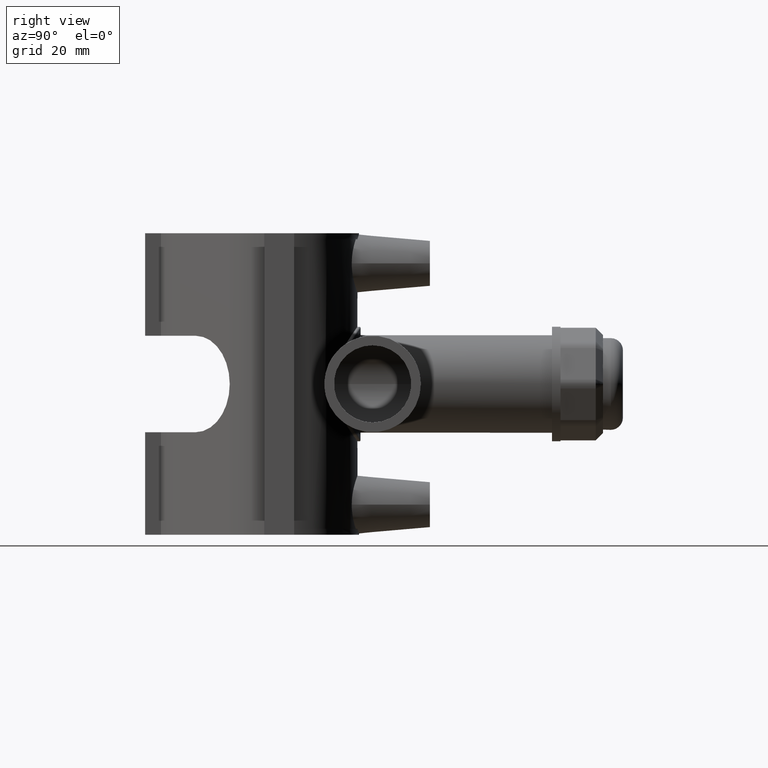
[diagram: clean part render]
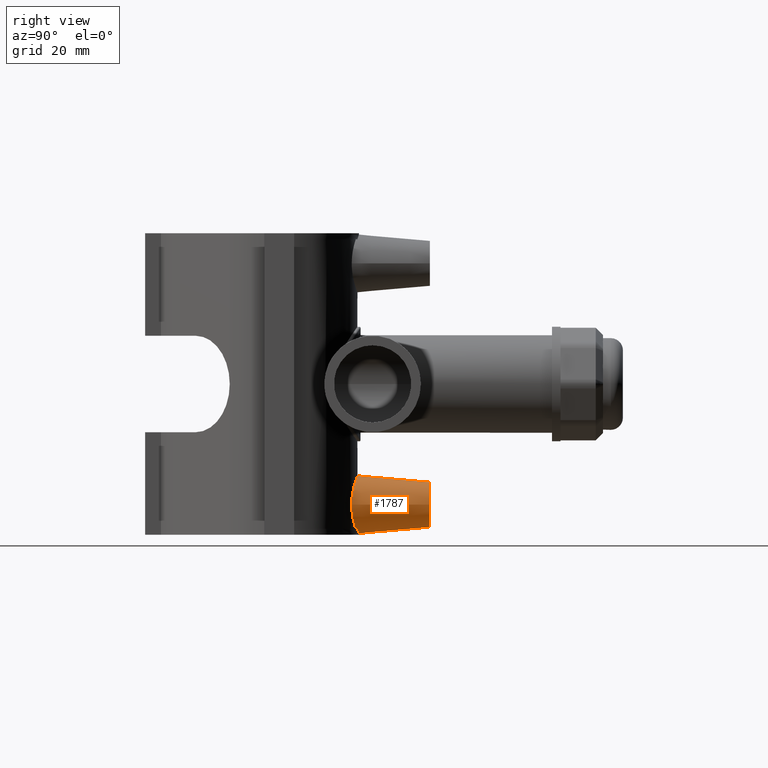
[diagram: same view with one face highlighted and labeled with its STEP entity id]
A machine part, right view. The second image highlights one B-rep face of the part: STEP entity #1787.
In plain terms, the highlighted conical surface has half-angle 5 deg.
Its self-contained STEP definition (entity closure, byte-faithful):
#29=(
BOUNDED_CURVE()
B_SPLINE_CURVE(2,(#2829,#2830,#2831),.UNSPECIFIED.,.F.,.F.)
B_SPLINE_CURVE_WITH_KNOTS((3,3),(0.133736892367415,0.189943766145764),
 .UNSPECIFIED.)
CURVE()
GEOMETRIC_REPRESENTATION_ITEM()
RATIONAL_B_SPLINE_CURVE((1.00009556013023,1.00009167201305,1.00006763645424))
REPRESENTATION_ITEM('')
);
#30=(
BOUNDED_CURVE()
B_SPLINE_CURVE(2,(#2844,#2845,#2846),.UNSPECIFIED.,.F.,.F.)
B_SPLINE_CURVE_WITH_KNOTS((3,3),(0.0558360570482742,0.112042930826623),
 .UNSPECIFIED.)
CURVE()
GEOMETRIC_REPRESENTATION_ITEM()
RATIONAL_B_SPLINE_CURVE((1.00006763645424,1.00009167201305,1.00009556013023))
REPRESENTATION_ITEM('')
);
#32=CONICAL_SURFACE('',#1919,7.5,5.);
#52=FACE_BOUND('',#346,.T.);
#69=B_SPLINE_CURVE_WITH_KNOTS('',3,(#2833,#2834,#2835,#2836,#2837,#2838,
#2839,#2840,#2841,#2842),.UNSPECIFIED.,.F.,.F.,(4,2,2,2,4),(3.86154772595049,
4.03463958852525,4.40043196614832,4.76622434377139,4.93931620634615),
 .UNSPECIFIED.);
#70=B_SPLINE_CURVE_WITH_KNOTS('',3,(#2848,#2849,#2850,#2851,#2852,#2853,
#2854,#2855,#2856,#2857,#2858,#2859,#2860,#2861,#2862,#2863,#2864,#2865,
#2866,#2867,#2868,#2869,#2870,#2871),.UNSPECIFIED.,.F.,.F.,(4,2,2,2,2,2,
2,2,2,2,2,4),(0.,0.369701649813085,0.739403299626169,1.10719176635003,1.47498023307389,
1.84276869979774,2.2105571665216,2.58025881633469,2.94996046614777,3.31966211596086,
3.68936376577394,3.87630209367673),.UNSPECIFIED.);
#71=B_SPLINE_CURVE_WITH_KNOTS('',3,(#2872,#2873,#2874,#2875,#2876,#2877,
#2878,#2879),.UNSPECIFIED.,.F.,.F.,(4,2,2,4),(4.97357930476659,5.16051763266937,
5.53021928248246,5.89992093229554),.UNSPECIFIED.);
#93=CIRCLE('',#1891,7.5);
#224=FACE_OUTER_BOUND('',#345,.T.);
#345=EDGE_LOOP('',(#1258,#1259,#1260,#1261,#1262));
#346=EDGE_LOOP('',(#1263));
#754=VERTEX_POINT('',#2721);
#775=VERTEX_POINT('',#2827);
#776=VERTEX_POINT('',#2828);
#777=VERTEX_POINT('',#2832);
#778=VERTEX_POINT('',#2843);
#779=VERTEX_POINT('',#2847);
#936=EDGE_CURVE('',#754,#754,#93,.T.);
#962=EDGE_CURVE('',#775,#776,#29,.T.);
#963=EDGE_CURVE('',#776,#777,#69,.T.);
#964=EDGE_CURVE('',#777,#778,#30,.T.);
#965=EDGE_CURVE('',#779,#778,#70,.T.);
#966=EDGE_CURVE('',#775,#779,#71,.T.);
#1258=ORIENTED_EDGE('',*,*,#962,.T.);
#1259=ORIENTED_EDGE('',*,*,#963,.T.);
#1260=ORIENTED_EDGE('',*,*,#964,.T.);
#1261=ORIENTED_EDGE('',*,*,#965,.F.);
#1262=ORIENTED_EDGE('',*,*,#966,.F.);
#1263=ORIENTED_EDGE('',*,*,#936,.T.);
#1787=ADVANCED_FACE('',(#224,#52),#32,.T.);
#1891=AXIS2_PLACEMENT_3D('',#2722,#2122,#2123);
#1919=AXIS2_PLACEMENT_3D('',#2826,#2185,#2186);
#2122=DIRECTION('center_axis',(0.,-1.,0.));
#2123=DIRECTION('ref_axis',(1.,0.,0.));
#2185=DIRECTION('center_axis',(0.,-1.,0.));
#2186=DIRECTION('ref_axis',(1.,0.,0.));
#2721=CARTESIAN_POINT('',(-7.5,50.,-40.));
#2722=CARTESIAN_POINT('Origin',(0.,50.,-40.));
#2826=CARTESIAN_POINT('Origin',(0.,50.,-40.));
#2827=CARTESIAN_POINT('',(5.3951674336109,25.4340749460896,-48.));
#2828=CARTESIAN_POINT('',(5.30876387516254,25.9832143145872,-48.));
#2829=CARTESIAN_POINT('Ctrl Pts',(5.3951674336109,25.4340749460896,-48.));
#2830=CARTESIAN_POINT('Ctrl Pts',(5.35185783535779,25.7108609933817,-48.));
#2831=CARTESIAN_POINT('Ctrl Pts',(5.30876387516254,25.9832143145872,-48.));
#2832=CARTESIAN_POINT('',(-5.30876387516254,25.9832143145872,-48.));
#2833=CARTESIAN_POINT('Ctrl Pts',(5.30876387516254,25.9832143145872,-48.));
#2834=CARTESIAN_POINT('Ctrl Pts',(4.80614466395268,26.0859070253168,-48.3227531575944));
#2835=CARTESIAN_POINT('Ctrl Pts',(4.26604609183942,26.1807941840248,-48.6035301130302));
#2836=CARTESIAN_POINT('Ctrl Pts',(2.51473217360753,26.427785365591,-49.3144846289839));
#2837=CARTESIAN_POINT('Ctrl Pts',(1.21930792541024,26.52,-49.5542338195887));
#2838=CARTESIAN_POINT('Ctrl Pts',(-1.21930792541024,26.52,-49.5542338195887));
#2839=CARTESIAN_POINT('Ctrl Pts',(-2.51473217360753,26.427785365591,-49.3144846289839));
#2840=CARTESIAN_POINT('Ctrl Pts',(-4.26604609183942,26.1807941840248,-48.6035301130302));
#2841=CARTESIAN_POINT('Ctrl Pts',(-4.80614466395267,26.0859070253168,-48.3227531575944));
#2842=CARTESIAN_POINT('Ctrl Pts',(-5.30876387516254,25.9832143145872,-48.));
#2843=CARTESIAN_POINT('',(-5.3951674336109,25.4340749460896,-48.));
#2844=CARTESIAN_POINT('Ctrl Pts',(-5.30876387516254,25.9832143145872,-48.));
#2845=CARTESIAN_POINT('Ctrl Pts',(-5.35185783535865,25.7108609933762,-48.));
#2846=CARTESIAN_POINT('Ctrl Pts',(-5.3951674336109,25.4340749460896,-48.));
#2847=CARTESIAN_POINT('',(9.76630249195255,24.096043983104,-40.));
#2848=CARTESIAN_POINT('Ctrl Pts',(9.76630249195255,24.096043983104,-40.));
#2849=CARTESIAN_POINT('Ctrl Pts',(9.76630249195255,24.096043983104,-38.7676611672897));
#2850=CARTESIAN_POINT('Ctrl Pts',(9.5099621601497,24.2044189053943,-37.4659549905574));
#2851=CARTESIAN_POINT('Ctrl Pts',(8.49387395753574,24.5794092044208,-35.0932926872271));
#2852=CARTESIAN_POINT('Ctrl Pts',(7.73484343137408,24.8390807172828,-34.0209372487483));
#2853=CARTESIAN_POINT('Ctrl Pts',(6.00569492756995,25.3126652865951,-32.3389729484772));
#2854=CARTESIAN_POINT('Ctrl Pts',(4.91758131382388,25.5592379122145,-31.6109466468528));
#2855=CARTESIAN_POINT('Ctrl Pts',(2.528128502029,25.9049380292898,-30.6412987795354));
#2856=CARTESIAN_POINT('Ctrl Pts',(1.22596155574619,26.,-30.4002720753778));
#2857=CARTESIAN_POINT('Ctrl Pts',(-1.22596155574619,26.,-30.4002720753778));
#2858=CARTESIAN_POINT('Ctrl Pts',(-2.528128502029,25.9049380292898,-30.6412987795354));
#2859=CARTESIAN_POINT('Ctrl Pts',(-4.91758131382388,25.5592379122145,-31.6109466468528));
#2860=CARTESIAN_POINT('Ctrl Pts',(-6.00569492756996,25.3126652865951,-32.3389729484772));
#2861=CARTESIAN_POINT('Ctrl Pts',(-7.73484343137409,24.8390807172828,-34.0209372487483));
#2862=CARTESIAN_POINT('Ctrl Pts',(-8.49387395753574,24.5794092044208,-35.0932926872271));
#2863=CARTESIAN_POINT('Ctrl Pts',(-9.50996216014971,24.2044189053943,-37.4659549905574));
#2864=CARTESIAN_POINT('Ctrl Pts',(-9.76630249195255,24.096043983104,-38.7676611672897));
#2865=CARTESIAN_POINT('Ctrl Pts',(-9.76630249195255,24.096043983104,-41.2323388327103));
#2866=CARTESIAN_POINT('Ctrl Pts',(-9.50996216014972,24.2044189053942,-42.5340450094426));
#2867=CARTESIAN_POINT('Ctrl Pts',(-8.49387395753575,24.5794092044208,-44.9067073127729));
#2868=CARTESIAN_POINT('Ctrl Pts',(-7.73484343137408,24.8390807172828,-45.9790627512517));
#2869=CARTESIAN_POINT('Ctrl Pts',(-6.42972331783999,25.1965310724773,-47.2485693515817));
#2870=CARTESIAN_POINT('Ctrl Pts',(-5.93451184178679,25.3196672708485,-47.6483411838531));
#2871=CARTESIAN_POINT('Ctrl Pts',(-5.39516743361091,25.4340749460896,-48.));
#2872=CARTESIAN_POINT('Ctrl Pts',(5.3951674336109,25.4340749460896,-48.));
#2873=CARTESIAN_POINT('Ctrl Pts',(5.93451184178679,25.3196672708485,-47.6483411838531));
#2874=CARTESIAN_POINT('Ctrl Pts',(6.42972331783999,25.1965310724773,-47.2485693515817));
#2875=CARTESIAN_POINT('Ctrl Pts',(7.73484343137409,24.8390807172828,-45.9790627512517));
#2876=CARTESIAN_POINT('Ctrl Pts',(8.49387395753574,24.5794092044208,-44.9067073127729));
#2877=CARTESIAN_POINT('Ctrl Pts',(9.5099621601497,24.2044189053942,-42.5340450094426));
#2878=CARTESIAN_POINT('Ctrl Pts',(9.76630249195255,24.096043983104,-41.2323388327103));
#2879=CARTESIAN_POINT('Ctrl Pts',(9.76630249195255,24.096043983104,-40.));